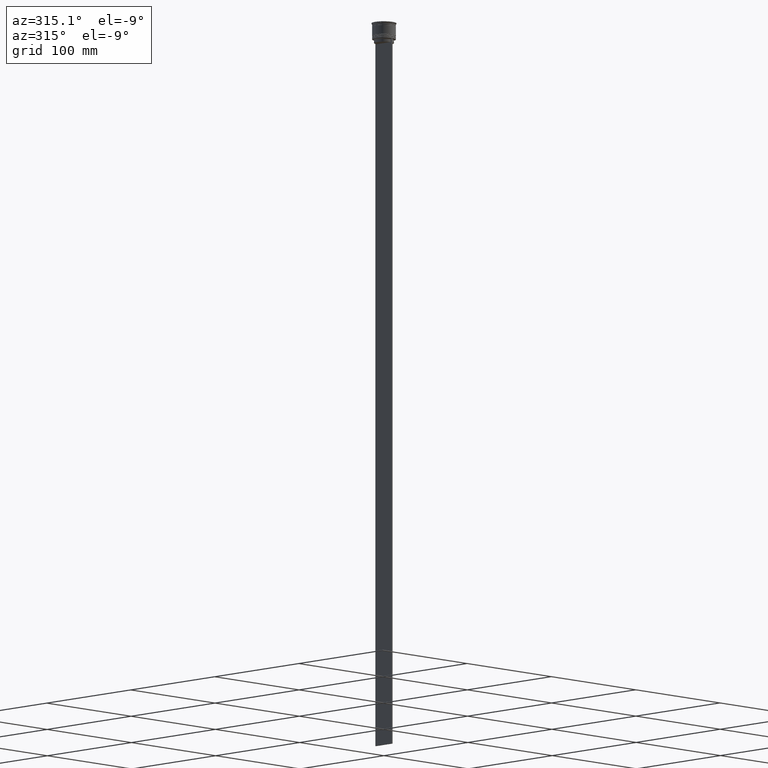
[diagram: clean part render]
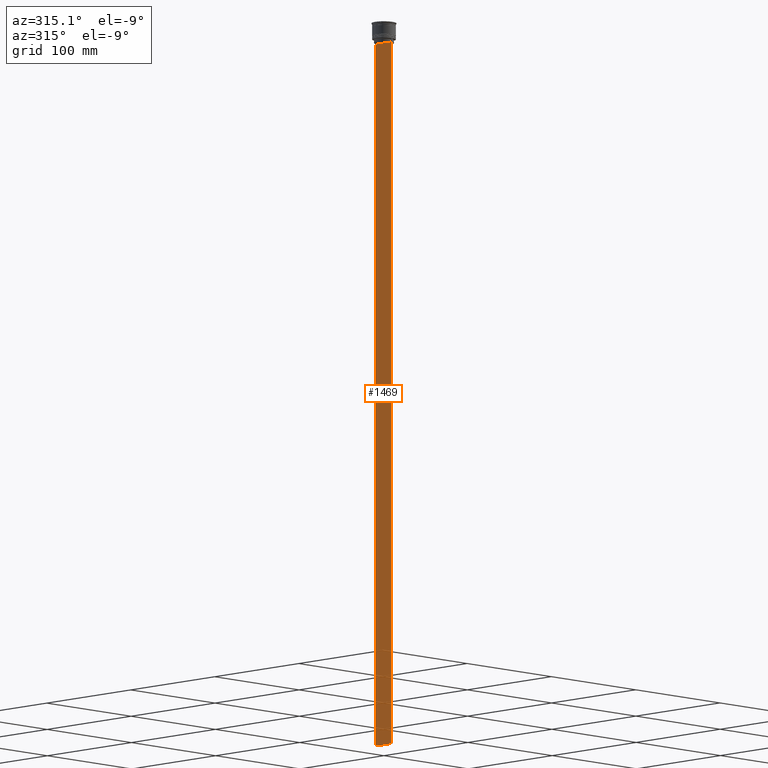
[diagram: same view with one face highlighted and labeled with its STEP entity id]
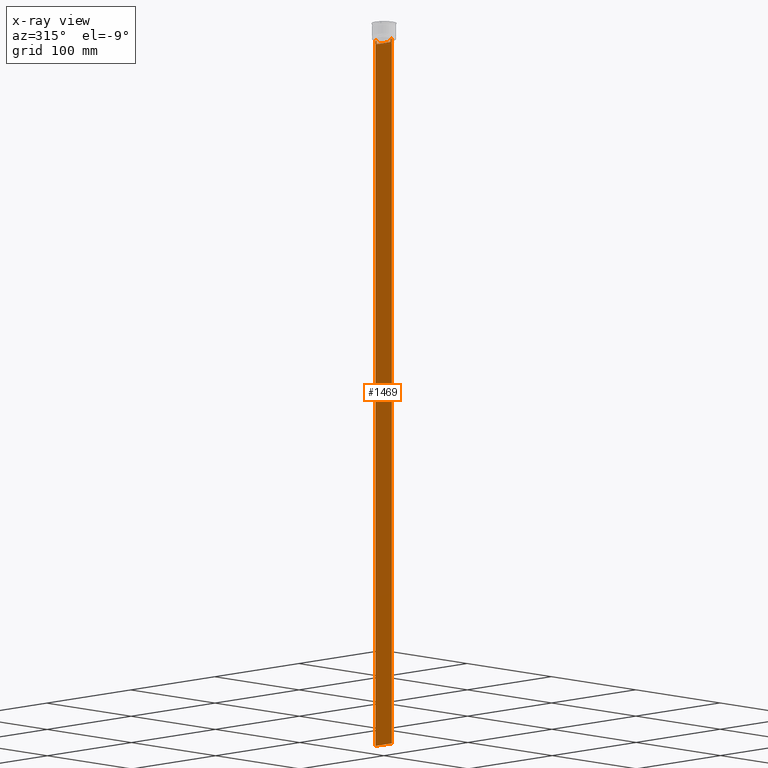
[diagram: x-ray of the same camera — body ghosted, the highlighted face saturated]
A machine part, auxiliary view. The second image highlights one B-rep face of the part: STEP entity #1469.
The next image is the same camera in x-ray: the body ghosted, the highlighted face saturated — about 0% of this face is hidden behind the body in this view.
In plain terms, the highlighted planar face has unit normal (-1, 0, 0).
Its self-contained STEP definition (entity closure, byte-faithful):
#15 = CARTESIAN_POINT ( 'NONE',  ( -0.5000000000000001110, -9.749999999999998224, -614.0000000000000000 ) ) ;
#31 = DIRECTION ( 'NONE',  ( -1.000000000000000000, 0.000000000000000000, 0.000000000000000000 ) ) ;
#43 = CARTESIAN_POINT ( 'NONE',  ( -0.5000000000000001110, -8.719005764482790966, -14.16667454151159689 ) ) ;
#86 = CARTESIAN_POINT ( 'NONE',  ( -0.5000000000000001110, 8.552060201981381837, -14.33334167021640226 ) ) ;
#104 = CARTESIAN_POINT ( 'NONE',  ( -0.5000000000000001110, -9.749999999999998224, -14.00000000000000178 ) ) ;
#172 = ORIENTED_EDGE ( 'NONE', *, *, #2049, .F. ) ;
#189 = VECTOR ( 'NONE', #1404, 1000.000000000000000 ) ;
#207 = ORIENTED_EDGE ( 'NONE', *, *, #2545, .F. ) ;
#215 = CARTESIAN_POINT ( 'NONE',  ( -0.5000000000000001110, 9.749999999999998224, -14.00000000000000178 ) ) ;
#262 = EDGE_CURVE ( 'NONE', #885, #2507, #1816, .T. ) ;
#341 = CARTESIAN_POINT ( 'NONE',  ( -0.5000000000000001110, 8.385105843100616241, 0.000000000000000000 ) ) ;
#367 = VERTEX_POINT ( 'NONE', #215 ) ;
#382 = LINE ( 'NONE', #1777, #1192 ) ;
#394 = VECTOR ( 'NONE', #837, 1000.000000000000000 ) ;
#446 = CARTESIAN_POINT ( 'NONE',  ( -0.5000000000000001110, 9.750000000000001776, -614.0000000000000000 ) ) ;
#480 = CARTESIAN_POINT ( 'NONE',  ( -0.5000000000000001110, -8.385105843100616241, -14.50000000000000000 ) ) ;
#598 = LINE ( 'NONE', #2197, #189 ) ;
#606 = VECTOR ( 'NONE', #2298, 1000.000000000000000 ) ;
#625 = ORIENTED_EDGE ( 'NONE', *, *, #1724, .F. ) ;
#634 = EDGE_CURVE ( 'NONE', #1859, #1720, #964, .T. ) ;
#706 = DIRECTION ( 'NONE',  ( 0.000000000000000000, -1.000000000000000000, 0.000000000000000000 ) ) ;
#708 = ORIENTED_EDGE ( 'NONE', *, *, #871, .F. ) ;
#737 = LINE ( 'NONE', #341, #1817 ) ;
#772 = CARTESIAN_POINT ( 'NONE',  ( -0.5000000000000001110, 8.385105843100616241, -17.00000000000000000 ) ) ;
#827 = ORIENTED_EDGE ( 'NONE', *, *, #634, .F. ) ;
#837 = DIRECTION ( 'NONE',  ( 0.000000000000000000, 1.000000000000000000, 0.000000000000000000 ) ) ;
#838 = CARTESIAN_POINT ( 'NONE',  ( -0.5000000000000001110, -8.885943956609230199, -14.00000000000000178 ) ) ;
#841 = CARTESIAN_POINT ( 'NONE',  ( -0.5000000000000001110, 8.885943956609230199, -14.00000000000000178 ) ) ;
#854 = PLANE ( 'NONE',  #1900 ) ;
#871 = EDGE_CURVE ( 'NONE', #1023, #1859, #1086, .T. ) ;
#875 = CARTESIAN_POINT ( 'NONE',  ( -0.5000000000000001110, 8.400000000000003908, -17.00000000000000000 ) ) ;
#885 = VERTEX_POINT ( 'NONE', #1459 ) ;
#941 = VERTEX_POINT ( 'NONE', #1157 ) ;
#964 = LINE ( 'NONE', #2315, #1432 ) ;
#1020 = CARTESIAN_POINT ( 'NONE',  ( -0.5000000000000001110, -9.749999999999998224, 5.525624189766635830 ) ) ;
#1023 = VERTEX_POINT ( 'NONE', #772 ) ;
#1046 = ORIENTED_EDGE ( 'NONE', *, *, #2354, .F. ) ;
#1086 = LINE ( 'NONE', #875, #606 ) ;
#1098 = LINE ( 'NONE', #104, #1686 ) ;
#1157 = CARTESIAN_POINT ( 'NONE',  ( -0.5000000000000001110, 8.385105843100616241, -14.50000000000000000 ) ) ;
#1170 = DIRECTION ( 'NONE',  ( 0.000000000000000000, -1.000000000000000000, 0.000000000000000000 ) ) ;
#1192 = VECTOR ( 'NONE', #1170, 1000.000000000000000 ) ;
#1285 = VERTEX_POINT ( 'NONE', #2065 ) ;
#1329 = ORIENTED_EDGE ( 'NONE', *, *, #1708, .T. ) ;
#1404 = DIRECTION ( 'NONE',  ( 0.000000000000000000, 0.000000000000000000, -1.000000000000000000 ) ) ;
#1432 = VECTOR ( 'NONE', #1734, 1000.000000000000000 ) ;
#1459 = CARTESIAN_POINT ( 'NONE',  ( -0.5000000000000001110, -9.749999999999998224, -614.0000000000000000 ) ) ;
#1469 = ADVANCED_FACE ( 'NONE', ( #2208 ), #854, .T. ) ;
#1478 = CARTESIAN_POINT ( 'NONE',  ( -0.5000000000000001110, -8.885943956609230199, -14.00000000000000178 ) ) ;
#1526 = EDGE_LOOP ( 'NONE', ( #625, #207, #1329, #1642, #172, #1046, #1706, #827, #708, #2296 ) ) ;
#1548 = DIRECTION ( 'NONE',  ( 0.000000000000000000, 0.000000000000000000, -1.000000000000000000 ) ) ;
#1549 = EDGE_CURVE ( 'NONE', #1720, #1750, #1575, .T. ) ;
#1575 = B_SPLINE_CURVE_WITH_KNOTS ( 'NONE', 3,
 ( #2059, #1592, #43, #838 ),
 .UNSPECIFIED., .F., .F.,
 ( 4, 4 ),
 ( 0.03898465126933130243, 0.03969388910599658260 ),
 .UNSPECIFIED. ) ;
#1592 = CARTESIAN_POINT ( 'NONE',  ( -0.5000000000000001110, -8.552060194457773434, -14.33334167772667023 ) ) ;
#1642 = ORIENTED_EDGE ( 'NONE', *, *, #262, .F. ) ;
#1649 = VERTEX_POINT ( 'NONE', #2054 ) ;
#1651 = CARTESIAN_POINT ( 'NONE',  ( -0.5000000000000001110, -9.749999999999998224, 5.525624189766635830 ) ) ;
#1669 = CARTESIAN_POINT ( 'NONE',  ( -0.5000000000000001110, 8.385105843100616241, -14.50000000000000000 ) ) ;
#1686 = VECTOR ( 'NONE', #706, 1000.000000000000000 ) ;
#1706 = ORIENTED_EDGE ( 'NONE', *, *, #1549, .F. ) ;
#1708 = EDGE_CURVE ( 'NONE', #367, #2507, #598, .T. ) ;
#1720 = VERTEX_POINT ( 'NONE', #480 ) ;
#1724 = EDGE_CURVE ( 'NONE', #1649, #941, #1893, .T. ) ;
#1734 = DIRECTION ( 'NONE',  ( -0.000000000000000000, -0.000000000000000000, 1.000000000000000000 ) ) ;
#1750 = VERTEX_POINT ( 'NONE', #1478 ) ;
#1777 = CARTESIAN_POINT ( 'NONE',  ( -0.5000000000000001110, -9.749999999999998224, -14.00000000000000178 ) ) ;
#1816 = LINE ( 'NONE', #15, #394 ) ;
#1817 = VECTOR ( 'NONE', #1548, 1000.000000000000000 ) ;
#1855 = DIRECTION ( 'NONE',  ( 0.000000000000000000, 0.000000000000000000, 1.000000000000000000 ) ) ;
#1859 = VERTEX_POINT ( 'NONE', #2223 ) ;
#1872 = CARTESIAN_POINT ( 'NONE',  ( -0.5000000000000001110, 8.719005771582351016, -14.16667453442324742 ) ) ;
#1893 = B_SPLINE_CURVE_WITH_KNOTS ( 'NONE', 3,
 ( #841, #1872, #86, #1669 ),
 .UNSPECIFIED., .F., .F.,
 ( 4, 4 ),
 ( 0.01511546479386908018, 0.01582316445439079997 ),
 .UNSPECIFIED. ) ;
#1900 = AXIS2_PLACEMENT_3D ( 'NONE', #1020, #31, #1855 ) ;
#1990 = VECTOR ( 'NONE', #2066, 1000.000000000000000 ) ;
#2049 = EDGE_CURVE ( 'NONE', #1285, #885, #2237, .T. ) ;
#2054 = CARTESIAN_POINT ( 'NONE',  ( -0.5000000000000001110, 8.885943956609230199, -14.00000000000000178 ) ) ;
#2059 = CARTESIAN_POINT ( 'NONE',  ( -0.5000000000000001110, -8.385105843100616241, -14.50000000000000000 ) ) ;
#2065 = CARTESIAN_POINT ( 'NONE',  ( -0.5000000000000001110, -9.749999999999998224, -14.00000000000000178 ) ) ;
#2066 = DIRECTION ( 'NONE',  ( 0.000000000000000000, 0.000000000000000000, -1.000000000000000000 ) ) ;
#2197 = CARTESIAN_POINT ( 'NONE',  ( -0.5000000000000001110, 9.750000000000001776, 5.525624189766635830 ) ) ;
#2208 = FACE_OUTER_BOUND ( 'NONE', #1526, .T. ) ;
#2223 = CARTESIAN_POINT ( 'NONE',  ( -0.5000000000000001110, -8.385105843100616241, -17.00000000000000000 ) ) ;
#2237 = LINE ( 'NONE', #1651, #1990 ) ;
#2296 = ORIENTED_EDGE ( 'NONE', *, *, #2329, .F. ) ;
#2298 = DIRECTION ( 'NONE',  ( 0.000000000000000000, -1.000000000000000000, 0.000000000000000000 ) ) ;
#2315 = CARTESIAN_POINT ( 'NONE',  ( -0.5000000000000001110, -8.385105843100616241, 0.000000000000000000 ) ) ;
#2329 = EDGE_CURVE ( 'NONE', #941, #1023, #737, .T. ) ;
#2354 = EDGE_CURVE ( 'NONE', #1750, #1285, #382, .T. ) ;
#2507 = VERTEX_POINT ( 'NONE', #446 ) ;
#2545 = EDGE_CURVE ( 'NONE', #367, #1649, #1098, .T. ) ;